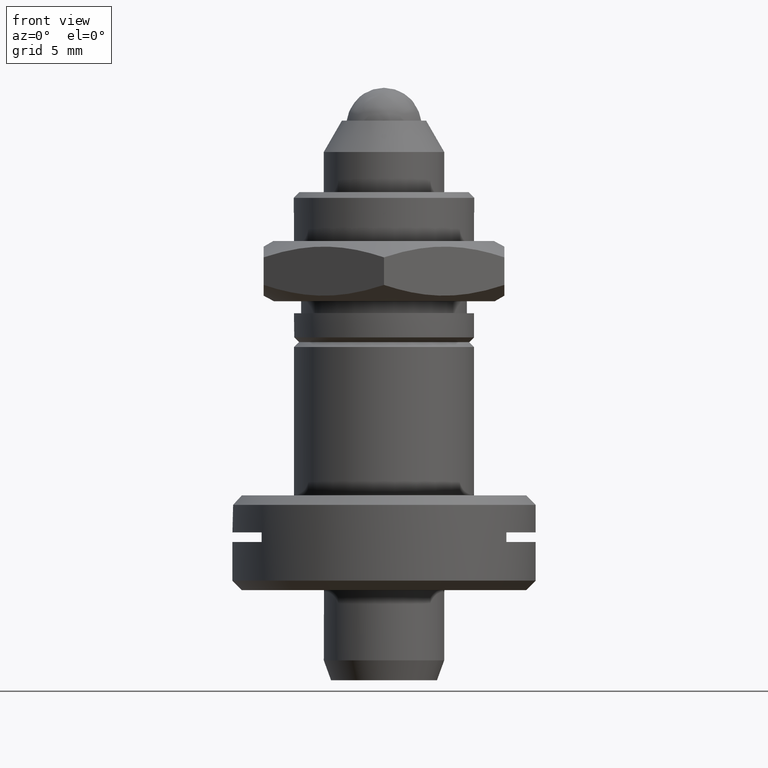
[diagram: clean part render]
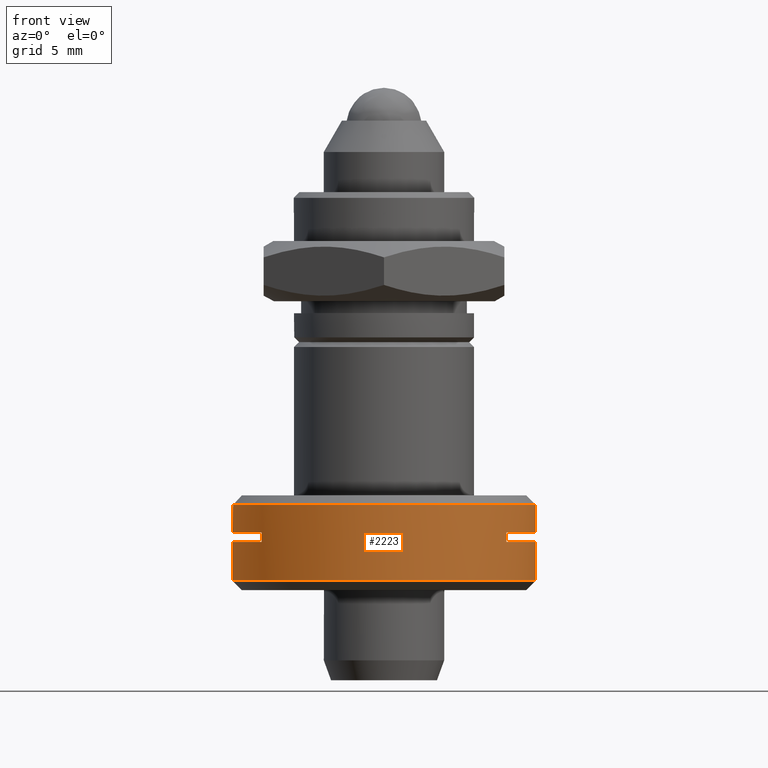
[diagram: same view with one face highlighted and labeled with its STEP entity id]
A machine part, front view. The second image highlights one B-rep face of the part: STEP entity #2223.
In plain terms, the highlighted cylindrical surface (bore or boss wall) has radius 8 mm, axis along (0, 0, 1).
Its self-contained STEP definition (entity closure, byte-faithful):
#12 = CYLINDRICAL_SURFACE ( 'NONE', #1947, 8.000000000000000000 ) ;
#24 = AXIS2_PLACEMENT_3D ( 'NONE', #2309, #2294, #914 ) ;
#56 = AXIS2_PLACEMENT_3D ( 'NONE', #1197, #2159, #1429 ) ;
#66 = CARTESIAN_POINT ( 'NONE',  ( 0.000000000000000000, 0.000000000000000000, -23.95219999999999771 ) ) ;
#67 = ORIENTED_EDGE ( 'NONE', *, *, #2460, .F. ) ;
#73 = VECTOR ( 'NONE', #2500, 1000.000000000000000 ) ;
#91 = ORIENTED_EDGE ( 'NONE', *, *, #2207, .T. ) ;
#120 = EDGE_LOOP ( 'NONE', ( #91 ) ) ;
#137 = LINE ( 'NONE', #2077, #73 ) ;
#234 = FACE_OUTER_BOUND ( 'NONE', #1635, .T. ) ;
#294 = CARTESIAN_POINT ( 'NONE',  ( -8.000000000000000000, 0.000000000000000000, -25.99220000000001818 ) ) ;
#383 = LINE ( 'NONE', #1922, #2122 ) ;
#394 = DIRECTION ( 'NONE',  ( 0.000000000000000000, 0.000000000000000000, -1.000000000000000000 ) ) ;
#429 = AXIS2_PLACEMENT_3D ( 'NONE', #66, #2479, #2066 ) ;
#440 = DIRECTION ( 'NONE',  ( 0.000000000000000000, 0.000000000000000000, 1.000000000000000000 ) ) ;
#512 = VERTEX_POINT ( 'NONE', #2323 ) ;
#591 = CARTESIAN_POINT ( 'NONE',  ( -6.452354611619448121, -4.729388963271392576, -23.95219999999999771 ) ) ;
#628 = FACE_OUTER_BOUND ( 'NONE', #120, .T. ) ;
#694 = AXIS2_PLACEMENT_3D ( 'NONE', #1958, #394, #985 ) ;
#725 = ORIENTED_EDGE ( 'NONE', *, *, #2330, .T. ) ;
#780 = ORIENTED_EDGE ( 'NONE', *, *, #1683, .T. ) ;
#914 = DIRECTION ( 'NONE',  ( 1.000000000000000000, 0.000000000000000000, 0.000000000000000000 ) ) ;
#920 = CARTESIAN_POINT ( 'NONE',  ( 6.452354611619446345, -4.729388963271392576, -23.95219999999999771 ) ) ;
#967 = EDGE_LOOP ( 'NONE', ( #1154, #780, #725, #67 ) ) ;
#985 = DIRECTION ( 'NONE',  ( 1.000000000000000000, 0.000000000000000000, 0.000000000000000000 ) ) ;
#1001 = VERTEX_POINT ( 'NONE', #2158 ) ;
#1020 = VERTEX_POINT ( 'NONE', #2290 ) ;
#1032 = ORIENTED_EDGE ( 'NONE', *, *, #1525, .T. ) ;
#1154 = ORIENTED_EDGE ( 'NONE', *, *, #1399, .T. ) ;
#1197 = CARTESIAN_POINT ( 'NONE',  ( 0.000000000000000000, 0.000000000000000000, -25.99220000000001818 ) ) ;
#1377 = FACE_BOUND ( 'NONE', #967, .T. ) ;
#1399 = EDGE_CURVE ( 'NONE', #1020, #512, #1758, .T. ) ;
#1429 = DIRECTION ( 'NONE',  ( -1.000000000000000000, 0.000000000000000000, 0.000000000000000000 ) ) ;
#1515 = VERTEX_POINT ( 'NONE', #591 ) ;
#1525 = EDGE_CURVE ( 'NONE', #1001, #1001, #1583, .T. ) ;
#1572 = CIRCLE ( 'NONE', #429, 8.000000000000000000 ) ;
#1583 = CIRCLE ( 'NONE', #694, 8.000000000000000000 ) ;
#1635 = EDGE_LOOP ( 'NONE', ( #1032 ) ) ;
#1653 = VERTEX_POINT ( 'NONE', #294 ) ;
#1683 = EDGE_CURVE ( 'NONE', #512, #1515, #137, .T. ) ;
#1758 = CIRCLE ( 'NONE', #24, 8.000000000000000000 ) ;
#1922 = CARTESIAN_POINT ( 'NONE',  ( 6.452354611619446345, -4.729388963271392576, -8.179483647207153041 ) ) ;
#1947 = AXIS2_PLACEMENT_3D ( 'NONE', #2199, #440, #2023 ) ;
#1958 = CARTESIAN_POINT ( 'NONE',  ( 0.000000000000000000, 0.000000000000000000, -21.99219999999998976 ) ) ;
#2023 = DIRECTION ( 'NONE',  ( 1.000000000000000000, 0.000000000000000000, 0.000000000000000000 ) ) ;
#2066 = DIRECTION ( 'NONE',  ( -1.000000000000000000, 0.000000000000000000, 0.000000000000000000 ) ) ;
#2077 = CARTESIAN_POINT ( 'NONE',  ( -6.452354611619448121, -4.729388963271389912, -8.179483647207153041 ) ) ;
#2122 = VECTOR ( 'NONE', #2522, 1000.000000000000000 ) ;
#2158 = CARTESIAN_POINT ( 'NONE',  ( 8.000000000000000000, 0.000000000000000000, -21.99219999999998976 ) ) ;
#2159 = DIRECTION ( 'NONE',  ( 0.000000000000000000, 0.000000000000000000, 1.000000000000000000 ) ) ;
#2199 = CARTESIAN_POINT ( 'NONE',  ( 0.000000000000000000, 0.000000000000000000, -23.44420000000000215 ) ) ;
#2207 = EDGE_CURVE ( 'NONE', #1653, #1653, #2287, .T. ) ;
#2223 = ADVANCED_FACE ( 'NONE', ( #628, #234, #1377 ), #12, .T. ) ;
#2287 = CIRCLE ( 'NONE', #56, 8.000000000000000000 ) ;
#2290 = CARTESIAN_POINT ( 'NONE',  ( 6.452354611619446345, -4.729388963271392576, -23.44420000000000215 ) ) ;
#2294 = DIRECTION ( 'NONE',  ( 0.000000000000000000, 0.000000000000000000, 1.000000000000000000 ) ) ;
#2309 = CARTESIAN_POINT ( 'NONE',  ( 0.000000000000000000, 0.000000000000000000, -23.44420000000000215 ) ) ;
#2323 = CARTESIAN_POINT ( 'NONE',  ( -6.452354611619448121, -4.729388963271389912, -23.44420000000000215 ) ) ;
#2330 = EDGE_CURVE ( 'NONE', #1515, #2439, #1572, .T. ) ;
#2439 = VERTEX_POINT ( 'NONE', #920 ) ;
#2460 = EDGE_CURVE ( 'NONE', #1020, #2439, #383, .T. ) ;
#2479 = DIRECTION ( 'NONE',  ( 0.000000000000000000, 0.000000000000000000, -1.000000000000000000 ) ) ;
#2500 = DIRECTION ( 'NONE',  ( -0.000000000000000000, -0.000000000000000000, -1.000000000000000000 ) ) ;
#2522 = DIRECTION ( 'NONE',  ( -0.000000000000000000, -0.000000000000000000, -1.000000000000000000 ) ) ;